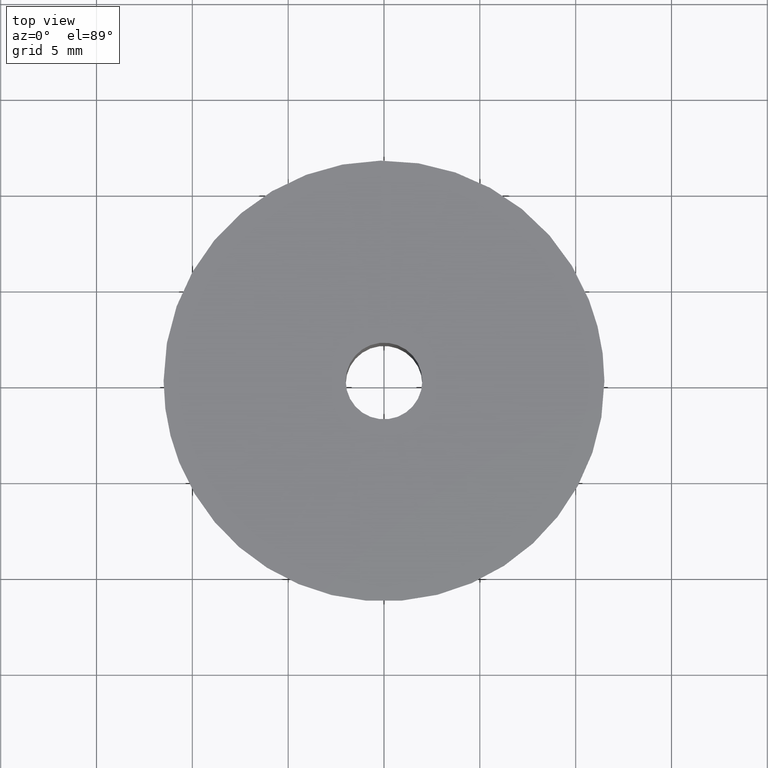
[diagram: clean part render]
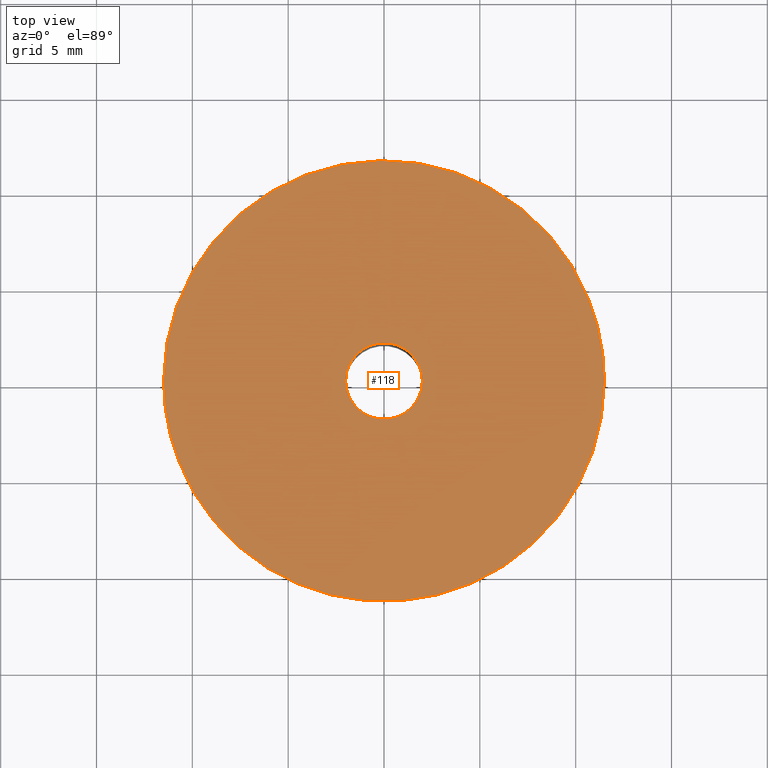
[diagram: same view with one face highlighted and labeled with its STEP entity id]
A machine part, top view. The second image highlights one B-rep face of the part: STEP entity #118.
In plain terms, the highlighted planar face has unit normal (0, 0, -1).
Its self-contained STEP definition (entity closure, byte-faithful):
#118=ADVANCED_FACE('',(#195,#196),#194,.F.);
#194=PLANE('',#373);
#195=FACE_OUTER_BOUND('',#374,.T.);
#196=FACE_BOUND('',#375,.T.);
#370=CARTESIAN_POINT('',(1.38000000000E+001,-1.44942599859E+001,2.00000000000E+001));
#371=DIRECTION('',(0.00000000000E+000,0.00000000000E+000,-1.00000000000E+000));
#372=DIRECTION('',(-1.00000000000E+000,0.00000000000E+000,0.00000000000E+000));
#373=AXIS2_PLACEMENT_3D('',#370,#371,#372);
#374=EDGE_LOOP('',(#530,#531,#532,#533,#534));
#375=EDGE_LOOP('',(#535,#536,#537));
#530=ORIENTED_EDGE('',*,*,#634,.F.);
#531=ORIENTED_EDGE('',*,*,#635,.F.);
#532=ORIENTED_EDGE('',*,*,#636,.F.);
#533=ORIENTED_EDGE('',*,*,#637,.F.);
#534=ORIENTED_EDGE('',*,*,#638,.F.);
#535=ORIENTED_EDGE('',*,*,#639,.T.);
#536=ORIENTED_EDGE('',*,*,#640,.T.);
#537=ORIENTED_EDGE('',*,*,#641,.T.);
#634=EDGE_CURVE('',#786,#787,#788,.T.);
#635=EDGE_CURVE('',#794,#786,#795,.T.);
#636=EDGE_CURVE('',#801,#794,#802,.T.);
#637=EDGE_CURVE('',#808,#801,#809,.T.);
#638=EDGE_CURVE('',#787,#808,#815,.T.);
#639=EDGE_CURVE('',#821,#822,#823,.T.);
#640=EDGE_CURVE('',#822,#829,#830,.T.);
#641=EDGE_CURVE('',#829,#821,#836,.T.);
#786=VERTEX_POINT('',#1152);
#787=VERTEX_POINT('',#1153);
#788=CIRCLE('',#1157,1.14999998897E+001);
#794=VERTEX_POINT('',#1158);
#795=CIRCLE('',#1162,1.14999998104E+001);
#801=VERTEX_POINT('',#1163);
#802=CIRCLE('',#1167,1.14999999128E+001);
#808=VERTEX_POINT('',#1168);
#809=CIRCLE('',#1172,1.15000000000E+001);
#815=CIRCLE('',#1176,1.15000000000E+001);
#821=VERTEX_POINT('',#1177);
#822=VERTEX_POINT('',#1178);
#823=CIRCLE('',#1182,2.00000000000E+000);
#829=VERTEX_POINT('',#1183);
#830=CIRCLE('',#1187,2.00000000000E+000);
#836=CIRCLE('',#1191,2.00000000000E+000);
#1152=CARTESIAN_POINT('',(-1.06934422203E+001,-4.23087354541E+000,1.99999985370E+001));
#1153=CARTESIAN_POINT('',(-1.15000000000E+001,0.00000000000E+000,2.00000000000E+001));
#1154=CARTESIAN_POINT('',(-1.10306203283E-007,2.77220270295E-007,1.99999992685E+001));
#1155=DIRECTION('',(-6.36090209172E-008,3.33667091712E-007,-1.00000000000E+000));
#1156=DIRECTION('',(9.29864540223E-001,3.67902075062E-001,6.36090424314E-008));
#1157=AXIS2_PLACEMENT_3D('',#1154,#1155,#1156);
#1158=CARTESIAN_POINT('',(9.02272999601E-001,-1.14645497568E+001,1.99999986623E+001));
#1159=CARTESIAN_POINT('',(-4.89422493644E-008,-9.33971655570E-008,1.99999985997E+001));
#1160=DIRECTION('',(7.78055514388E-009,-4.85368885071E-009,-1.00000000000E+000));
#1161=DIRECTION('',(-7.84585272538E-002,9.96917378473E-001,-5.44917766278E-009));
#1162=AXIS2_PLACEMENT_3D('',#1159,#1160,#1161);
#1163=CARTESIAN_POINT('',(1.15000000000E+001,0.00000000000E+000,2.00000000000E+001));
#1164=CARTESIAN_POINT('',(8.72392584839E-008,1.99946725843E-008,1.99999993312E+001));
#1165=DIRECTION('',(5.81598499702E-008,6.29169347822E-008,-1.00000000000E+000));
#1166=DIRECTION('',(-1.00000000000E+000,1.73866719443E-009,-5.81598498608E-008));
#1167=AXIS2_PLACEMENT_3D('',#1164,#1165,#1166);
#1168=CARTESIAN_POINT('',(1.06934397582E+001,4.23088006655E+000,2.00000000000E+001));
#1169=CARTESIAN_POINT('',(0.00000000000E+000,0.00000000000E+000,2.00000000000E+001));
#1170=DIRECTION('',(-0.00000000000E+000,-2.18447646426E-016,-1.00000000000E+000));
#1171=DIRECTION('',(1.00000000000E+000,-0.00000000000E+000,-0.00000000000E+000));
#1172=AXIS2_PLACEMENT_3D('',#1169,#1170,#1171);
#1173=CARTESIAN_POINT('',(0.00000000000E+000,0.00000000000E+000,2.00000000000E+001));
#1174=DIRECTION('',(-0.00000000000E+000,-2.18447646426E-016,-1.00000000000E+000));
#1175=DIRECTION('',(1.00000000000E+000,-0.00000000000E+000,-0.00000000000E+000));
#1176=AXIS2_PLACEMENT_3D('',#1173,#1174,#1175);
#1177=CARTESIAN_POINT('',(-1.99999999999E+000,2.77555756156E-017,2.00000000000E+001));
#1178=CARTESIAN_POINT('',(-2.36411791320E-001,1.98597821361E+000,2.00000000000E+001));
#1179=CARTESIAN_POINT('',(2.53808085660E-012,1.15429887870E-012,2.00000000000E+001));
#1180=DIRECTION('',(-1.55288054171E-013,-1.84581343636E-014,-1.00000000000E+000));
#1181=DIRECTION('',(-1.00000000000E+000,-5.76774739081E-013,1.55288054171E-013));
#1182=AXIS2_PLACEMENT_3D('',#1179,#1180,#1181);
#1183=CARTESIAN_POINT('',(2.36067743038E-001,-1.98601913905E+000,2.00000000000E+001));
#1184=CARTESIAN_POINT('',(2.53808085660E-012,1.15429887870E-012,2.00000000000E+001));
#1185=DIRECTION('',(-1.55288054171E-013,-1.84581343636E-014,-1.00000000000E+000));
#1186=DIRECTION('',(-1.00000000000E+000,-5.76774739081E-013,1.55288054171E-013));
#1187=AXIS2_PLACEMENT_3D('',#1184,#1185,#1186);
#1188=CARTESIAN_POINT('',(2.53808085660E-012,1.15429887870E-012,2.00000000000E+001));
#1189=DIRECTION('',(-1.55288054171E-013,-1.84581343636E-014,-1.00000000000E+000));
#1190=DIRECTION('',(-1.00000000000E+000,-5.76774739081E-013,1.55288054171E-013));
#1191=AXIS2_PLACEMENT_3D('',#1188,#1189,#1190);